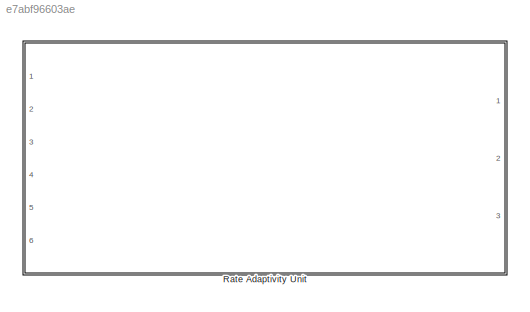
MODEL slx_e7abf96603ae
KIND model
CONFIG AbsTol = auto
CONFIG EnableMultiTasking = on
CONFIG FixedStep = 1e-3
CONFIG MaxStep = auto
CONFIG MinStep = auto
CONFIG RelTol = 1e-3
CONFIG SampleTimeConstraint = Unconstrained
CONFIG Solver = FixedStepAuto
CONFIG SolverName = FixedStepAuto
CONFIG StartTime = 0.0
CONFIG StopTime = 10.0
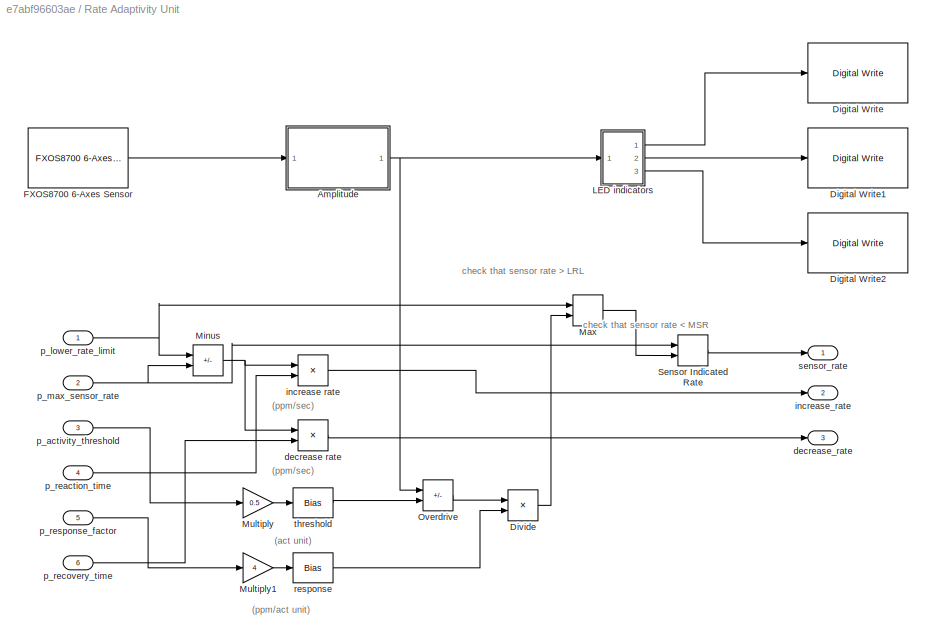
BLOCK [SubSystem] Rate Adaptivity Unit
  Ports = [6, 3]
  RequestExecContextInheritance = off
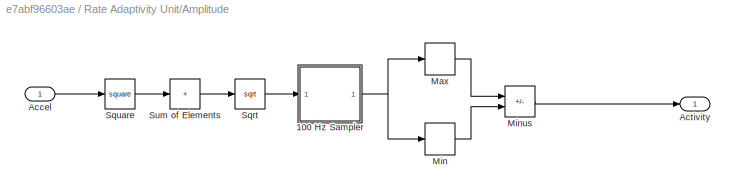
BLOCK [SubSystem] Rate Adaptivity Unit/Amplitude
  Ports = [1, 1]
  RequestExecContextInheritance = off
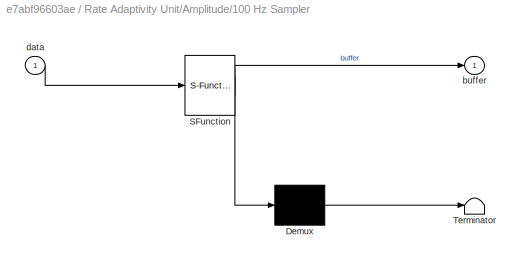
BLOCK [SubSystem] Rate Adaptivity Unit/Amplitude/100 Hz Sampler
  ErrorFcn = Stateflow.Translate.translate
  PermitHierarchicalResolution = ExplicitOnly
  Ports = [1, 1]
  RequestExecContextInheritance = off
  SFBlockType = Chart
  TreatAsAtomicUnit = on
BLOCK [Demux] Rate Adaptivity Unit/Amplitude/100 Hz Sampler/ Demux 
  Outputs = 1
  Ports = [1, 1]
BLOCK [S-Function] Rate Adaptivity Unit/Amplitude/100 Hz Sampler/ SFunction 
  EnableBusSupport = on
  FunctionName = sf_sfun
  PortCounts = [1 2]
  Ports = [1, 2]
  SFcnIsStateOwnerBlock = off
  SFunctionDeploymentMode = off
  Tag = Stateflow S-Function 3
BLOCK [Terminator] Rate Adaptivity Unit/Amplitude/100 Hz Sampler/ Terminator 
BLOCK [Outport] Rate Adaptivity Unit/Amplitude/100 Hz Sampler/buffer
BLOCK [Inport] Rate Adaptivity Unit/Amplitude/100 Hz Sampler/data
BLOCK [Inport] Rate Adaptivity Unit/Amplitude/Accel
BLOCK [Outport] Rate Adaptivity Unit/Amplitude/Activity
BLOCK [MinMax] Rate Adaptivity Unit/Amplitude/Max
  Function = max
  Ports = [1, 1]
BLOCK [MinMax] Rate Adaptivity Unit/Amplitude/Min
  Ports = [1, 1]
BLOCK [Sum] Rate Adaptivity Unit/Amplitude/Minus
  IconShape = rectangular
  Inputs = +-
  Ports = [2, 1]
BLOCK [Sqrt] Rate Adaptivity Unit/Amplitude/Sqrt
BLOCK [Math] Rate Adaptivity Unit/Amplitude/Square
  Operator = square
  Ports = [1, 1]
BLOCK [Sum] Rate Adaptivity Unit/Amplitude/Sum of Elements
  IconShape = rectangular
  Inputs = +
  Ports = [1, 1]
BLOCK [Reference] Rate Adaptivity Unit/Digital Write  REF=frdmk64flib/Digital Write
  Ports = [1]
  SourceBlock = frdmk64flib/Digital Write
  SourceProductBaseCode = EC_FRDM_K64F
  SourceType = freedomk64f.DigitalWrite
BLOCK [Reference] Rate Adaptivity Unit/Digital Write1  REF=frdmk64flib/Digital Write
  Ports = [1]
  SourceBlock = frdmk64flib/Digital Write
  SourceProductBaseCode = EC_FRDM_K64F
  SourceType = freedomk64f.DigitalWrite
BLOCK [Reference] Rate Adaptivity Unit/Digital Write2  REF=frdmk64flib/Digital Write
  Ports = [1]
  SourceBlock = frdmk64flib/Digital Write
  SourceProductBaseCode = EC_FRDM_K64F
  SourceType = freedomk64f.DigitalWrite
BLOCK [Product] Rate Adaptivity Unit/Divide
  Inputs = **
  Ports = [2, 1]
BLOCK [Reference] Rate Adaptivity Unit/FXOS8700 6-Axes Sensor  REF=frdmk64flib/FXOS8700 6-Axes Sensor
  Ports = [0, 1]
  SourceBlock = frdmk64flib/FXOS8700 6-Axes Sensor
  SourceProductBaseCode = EC_FRDM_K64F
  SourceType = freedomk64f.fxos8700
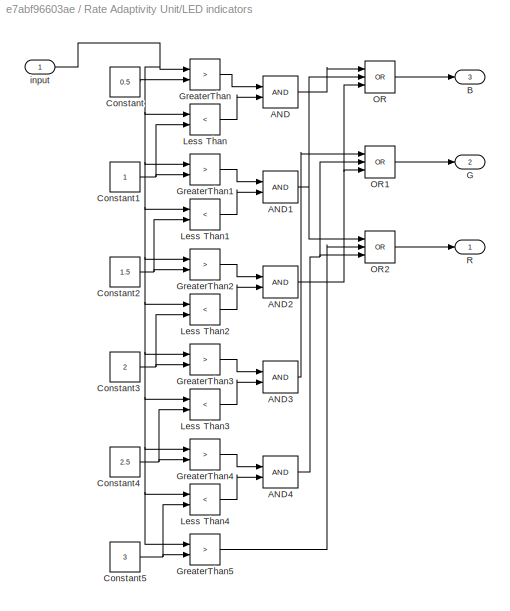
BLOCK [SubSystem] Rate Adaptivity Unit/LED indicators
  Ports = [1, 3]
  RequestExecContextInheritance = off
BLOCK [Logic] Rate Adaptivity Unit/LED indicators/AND
  AllPortsSameDT = off
  IconShape = distinctive
  OutDataTypeStr = boolean
  Ports = [2, 1]
BLOCK [Logic] Rate Adaptivity Unit/LED indicators/AND1
  AllPortsSameDT = off
  IconShape = distinctive
  OutDataTypeStr = boolean
  Ports = [2, 1]
BLOCK [Logic] Rate Adaptivity Unit/LED indicators/AND2
  AllPortsSameDT = off
  IconShape = distinctive
  OutDataTypeStr = boolean
  Ports = [2, 1]
BLOCK [Logic] Rate Adaptivity Unit/LED indicators/AND3
  AllPortsSameDT = off
  IconShape = distinctive
  OutDataTypeStr = boolean
  Ports = [2, 1]
BLOCK [Logic] Rate Adaptivity Unit/LED indicators/AND4
  AllPortsSameDT = off
  IconShape = distinctive
  OutDataTypeStr = boolean
  Ports = [2, 1]
BLOCK [Outport] Rate Adaptivity Unit/LED indicators/B
  Port = 3
BLOCK [Constant] Rate Adaptivity Unit/LED indicators/Constant
  Value = 0.5
BLOCK [Constant] Rate Adaptivity Unit/LED indicators/Constant1
BLOCK [Constant] Rate Adaptivity Unit/LED indicators/Constant2
  Value = 1.5
BLOCK [Constant] Rate Adaptivity Unit/LED indicators/Constant3
  Value = 2
BLOCK [Constant] Rate Adaptivity Unit/LED indicators/Constant4
  Value = 2.5
BLOCK [Constant] Rate Adaptivity Unit/LED indicators/Constant5
  Value = 3
BLOCK [Outport] Rate Adaptivity Unit/LED indicators/G
  Port = 2
BLOCK [RelationalOperator] Rate Adaptivity Unit/LED indicators/GreaterThan
  InputSameDT = off
  Operator = >
  OutDataTypeStr = boolean
  Ports = [2, 1]
  RndMeth = Simplest
BLOCK [RelationalOperator] Rate Adaptivity Unit/LED indicators/GreaterThan1
  InputSameDT = off
  Operator = >
  OutDataTypeStr = boolean
  Ports = [2, 1]
  RndMeth = Simplest
BLOCK [RelationalOperator] Rate Adaptivity Unit/LED indicators/GreaterThan2
  InputSameDT = off
  Operator = >
  OutDataTypeStr = boolean
  Ports = [2, 1]
  RndMeth = Simplest
BLOCK [RelationalOperator] Rate Adaptivity Unit/LED indicators/GreaterThan3
  InputSameDT = off
  Operator = >
  OutDataTypeStr = boolean
  Ports = [2, 1]
  RndMeth = Simplest
BLOCK [RelationalOperator] Rate Adaptivity Unit/LED indicators/GreaterThan4
  InputSameDT = off
  Operator = >
  OutDataTypeStr = boolean
  Ports = [2, 1]
  RndMeth = Simplest
BLOCK [RelationalOperator] Rate Adaptivity Unit/LED indicators/GreaterThan5
  InputSameDT = off
  Operator = >
  OutDataTypeStr = boolean
  Ports = [2, 1]
  RndMeth = Simplest
BLOCK [RelationalOperator] Rate Adaptivity Unit/LED indicators/Less Than
  InputSameDT = off
  Operator = <
  OutDataTypeStr = boolean
  Ports = [2, 1]
  RndMeth = Simplest
BLOCK [RelationalOperator] Rate Adaptivity Unit/LED indicators/Less Than1
  InputSameDT = off
  Operator = <
  OutDataTypeStr = boolean
  Ports = [2, 1]
  RndMeth = Simplest
BLOCK [RelationalOperator] Rate Adaptivity Unit/LED indicators/Less Than2
  InputSameDT = off
  Operator = <
  OutDataTypeStr = boolean
  Ports = [2, 1]
  RndMeth = Simplest
BLOCK [RelationalOperator] Rate Adaptivity Unit/LED indicators/Less Than3
  InputSameDT = off
  Operator = <
  OutDataTypeStr = boolean
  Ports = [2, 1]
  RndMeth = Simplest
BLOCK [RelationalOperator] Rate Adaptivity Unit/LED indicators/Less Than4
  InputSameDT = off
  Operator = <
  OutDataTypeStr = boolean
  Ports = [2, 1]
  RndMeth = Simplest
BLOCK [Logic] Rate Adaptivity Unit/LED indicators/OR
  AllPortsSameDT = off
  IconShape = distinctive
  Inputs = 3
  Operator = OR
  OutDataTypeStr = boolean
  Ports = [3, 1]
BLOCK [Logic] Rate Adaptivity Unit/LED indicators/OR1
  AllPortsSameDT = off
  IconShape = distinctive
  Inputs = 3
  Operator = OR
  OutDataTypeStr = boolean
  Ports = [3, 1]
BLOCK [Logic] Rate Adaptivity Unit/LED indicators/OR2
  AllPortsSameDT = off
  IconShape = distinctive
  Inputs = 3
  Operator = OR
  OutDataTypeStr = boolean
  Ports = [3, 1]
BLOCK [Outport] Rate Adaptivity Unit/LED indicators/R
BLOCK [Inport] Rate Adaptivity Unit/LED indicators/input
BLOCK [MinMax] Rate Adaptivity Unit/Max
  Function = max
  Inputs = 2
  Ports = [2, 1]
BLOCK [Sum] Rate Adaptivity Unit/Minus
  IconShape = rectangular
  Inputs = -+
  Ports = [2, 1]
BLOCK [Gain] Rate Adaptivity Unit/Multiply
  Gain = 0.5
BLOCK [Gain] Rate Adaptivity Unit/Multiply1
  Gain = 4
BLOCK [Sum] Rate Adaptivity Unit/Overdrive
  IconShape = rectangular
  Inputs = +-
  Ports = [2, 1]
BLOCK [MinMax] Rate Adaptivity Unit/Sensor Indicated Rate
  Inputs = 2
  Ports = [2, 1]
BLOCK [Product] Rate Adaptivity Unit/decrease rate
  Inputs = */
  Ports = [2, 1]
BLOCK [Outport] Rate Adaptivity Unit/decrease_rate
  Port = 3
BLOCK [Product] Rate Adaptivity Unit/increase rate
  Inputs = */
  Ports = [2, 1]
BLOCK [Outport] Rate Adaptivity Unit/increase_rate
  Port = 2
BLOCK [Inport] Rate Adaptivity Unit/p_activity_threshold
  Port = 3
BLOCK [Inport] Rate Adaptivity Unit/p_lower_rate_limit
BLOCK [Inport] Rate Adaptivity Unit/p_max_sensor_rate
  Port = 2
BLOCK [Inport] Rate Adaptivity Unit/p_reaction_time
  Port = 4
BLOCK [Inport] Rate Adaptivity Unit/p_recovery_time
  Port = 6
BLOCK [Inport] Rate Adaptivity Unit/p_response_factor
  Port = 5
BLOCK [Bias] Rate Adaptivity Unit/response
  SaturateOnIntegerOverflow = off
BLOCK [Outport] Rate Adaptivity Unit/sensor_rate
BLOCK [Bias] Rate Adaptivity Unit/threshold
  Bias = 0.5
  SaturateOnIntegerOverflow = off
ANNOTATION Rate Adaptivity Unit: (act unit)
ANNOTATION Rate Adaptivity Unit: (ppm/act unit)
ANNOTATION Rate Adaptivity Unit: (ppm/sec)
ANNOTATION Rate Adaptivity Unit: check that sensor rate < MSR
ANNOTATION Rate Adaptivity Unit: check that sensor rate > LRL
NET Rate Adaptivity Unit/Amplitude/100 Hz Sampler:1 -> Rate Adaptivity Unit/Amplitude/Max:1, Rate Adaptivity Unit/Amplitude/Min:1
LINE Rate Adaptivity Unit/Amplitude/Accel:1 -> Rate Adaptivity Unit/Amplitude/Square:1
LINE Rate Adaptivity Unit/Amplitude/Max:1 -> Rate Adaptivity Unit/Amplitude/Minus:1
LINE Rate Adaptivity Unit/Amplitude/Min:1 -> Rate Adaptivity Unit/Amplitude/Minus:2
LINE Rate Adaptivity Unit/Amplitude/Minus:1 -> Rate Adaptivity Unit/Amplitude/Activity:1
LINE Rate Adaptivity Unit/Amplitude/Sqrt:1 -> Rate Adaptivity Unit/Amplitude/100 Hz Sampler:1
LINE Rate Adaptivity Unit/Amplitude/Square:1 -> Rate Adaptivity Unit/Amplitude/Sum of Elements:1
LINE Rate Adaptivity Unit/Amplitude/Sum of Elements:1 -> Rate Adaptivity Unit/Amplitude/Sqrt:1
NET Rate Adaptivity Unit/Amplitude:1 -> Rate Adaptivity Unit/LED indicators:1, Rate Adaptivity Unit/Overdrive:1
LINE Rate Adaptivity Unit/Divide:1 -> Rate Adaptivity Unit/Max:2
LINE Rate Adaptivity Unit/FXOS8700 6-Axes Sensor:1 -> Rate Adaptivity Unit/Amplitude:1
NET Rate Adaptivity Unit/LED indicators/AND1:1 -> Rate Adaptivity Unit/LED indicators/OR2:1, Rate Adaptivity Unit/LED indicators/OR:2
NET Rate Adaptivity Unit/LED indicators/AND2:1 -> Rate Adaptivity Unit/LED indicators/OR1:3, Rate Adaptivity Unit/LED indicators/OR:3
LINE Rate Adaptivity Unit/LED indicators/AND3:1 -> Rate Adaptivity Unit/LED indicators/OR1:1
NET Rate Adaptivity Unit/LED indicators/AND4:1 -> Rate Adaptivity Unit/LED indicators/OR1:2, Rate Adaptivity Unit/LED indicators/OR2:3
LINE Rate Adaptivity Unit/LED indicators/AND:1 -> Rate Adaptivity Unit/LED indicators/OR:1
NET Rate Adaptivity Unit/LED indicators/Constant1:1 -> Rate Adaptivity Unit/LED indicators/GreaterThan1:2, Rate Adaptivity Unit/LED indicators/Less Than:2
NET Rate Adaptivity Unit/LED indicators/Constant2:1 -> Rate Adaptivity Unit/LED indicators/GreaterThan2:2, Rate Adaptivity Unit/LED indicators/Less Than1:2
NET Rate Adaptivity Unit/LED indicators/Constant3:1 -> Rate Adaptivity Unit/LED indicators/GreaterThan3:2, Rate Adaptivity Unit/LED indicators/Less Than2:2
NET Rate Adaptivity Unit/LED indicators/Constant4:1 -> Rate Adaptivity Unit/LED indicators/GreaterThan4:2, Rate Adaptivity Unit/LED indicators/Less Than3:2
NET Rate Adaptivity Unit/LED indicators/Constant5:1 -> Rate Adaptivity Unit/LED indicators/GreaterThan5:2, Rate Adaptivity Unit/LED indicators/Less Than4:2
LINE Rate Adaptivity Unit/LED indicators/Constant:1 -> Rate Adaptivity Unit/LED indicators/GreaterThan:2
LINE Rate Adaptivity Unit/LED indicators/GreaterThan1:1 -> Rate Adaptivity Unit/LED indicators/AND1:1
LINE Rate Adaptivity Unit/LED indicators/GreaterThan2:1 -> Rate Adaptivity Unit/LED indicators/AND2:1
LINE Rate Adaptivity Unit/LED indicators/GreaterThan3:1 -> Rate Adaptivity Unit/LED indicators/AND3:1
LINE Rate Adaptivity Unit/LED indicators/GreaterThan4:1 -> Rate Adaptivity Unit/LED indicators/AND4:1
LINE Rate Adaptivity Unit/LED indicators/GreaterThan5:1 -> Rate Adaptivity Unit/LED indicators/OR2:2
LINE Rate Adaptivity Unit/LED indicators/GreaterThan:1 -> Rate Adaptivity Unit/LED indicators/AND:1
LINE Rate Adaptivity Unit/LED indicators/Less Than1:1 -> Rate Adaptivity Unit/LED indicators/AND1:2
LINE Rate Adaptivity Unit/LED indicators/Less Than2:1 -> Rate Adaptivity Unit/LED indicators/AND2:2
LINE Rate Adaptivity Unit/LED indicators/Less Than3:1 -> Rate Adaptivity Unit/LED indicators/AND3:2
LINE Rate Adaptivity Unit/LED indicators/Less Than4:1 -> Rate Adaptivity Unit/LED indicators/AND4:2
LINE Rate Adaptivity Unit/LED indicators/Less Than:1 -> Rate Adaptivity Unit/LED indicators/AND:2
LINE Rate Adaptivity Unit/LED indicators/OR1:1 -> Rate Adaptivity Unit/LED indicators/G:1
LINE Rate Adaptivity Unit/LED indicators/OR2:1 -> Rate Adaptivity Unit/LED indicators/R:1
LINE Rate Adaptivity Unit/LED indicators/OR:1 -> Rate Adaptivity Unit/LED indicators/B:1
NET Rate Adaptivity Unit/LED indicators/input:1 -> Rate Adaptivity Unit/LED indicators/GreaterThan1:1, Rate Adaptivity Unit/LED indicators/GreaterThan2:1, Rate Adaptivity Unit/LED indicators/GreaterThan3:1, Rate Adaptivity Unit/LED indicators/GreaterThan4:1, Rate Adaptivity Unit/LED indicators/GreaterThan5:1, Rate Adaptivity Unit/LED indicators/GreaterThan:1, Rate Adaptivity Unit/LED indicators/Less Than1:1, Rate Adaptivity Unit/LED indicators/Less Than2:1, Rate Adaptivity Unit/LED indicators/Less Than3:1, Rate Adaptivity Unit/LED indicators/Less Than4:1, Rate Adaptivity Unit/LED indicators/Less Than:1
LINE Rate Adaptivity Unit/LED indicators:1 -> Rate Adaptivity Unit/Digital Write:1
LINE Rate Adaptivity Unit/LED indicators:2 -> Rate Adaptivity Unit/Digital Write1:1
LINE Rate Adaptivity Unit/LED indicators:3 -> Rate Adaptivity Unit/Digital Write2:1
LINE Rate Adaptivity Unit/Max:1 -> Rate Adaptivity Unit/Sensor Indicated Rate:2
NET Rate Adaptivity Unit/Minus:1 -> Rate Adaptivity Unit/decrease rate:1, Rate Adaptivity Unit/increase rate:1
LINE Rate Adaptivity Unit/Multiply1:1 -> Rate Adaptivity Unit/response:1
LINE Rate Adaptivity Unit/Multiply:1 -> Rate Adaptivity Unit/threshold:1
LINE Rate Adaptivity Unit/Overdrive:1 -> Rate Adaptivity Unit/Divide:1
LINE Rate Adaptivity Unit/Sensor Indicated Rate:1 -> Rate Adaptivity Unit/sensor_rate:1
LINE Rate Adaptivity Unit/decrease rate:1 -> Rate Adaptivity Unit/decrease_rate:1
LINE Rate Adaptivity Unit/increase rate:1 -> Rate Adaptivity Unit/increase_rate:1
LINE Rate Adaptivity Unit/p_activity_threshold:1 -> Rate Adaptivity Unit/Multiply:1
NET Rate Adaptivity Unit/p_lower_rate_limit:1 -> Rate Adaptivity Unit/Max:1, Rate Adaptivity Unit/Minus:1
NET Rate Adaptivity Unit/p_max_sensor_rate:1 -> Rate Adaptivity Unit/Minus:2, Rate Adaptivity Unit/Sensor Indicated Rate:1
LINE Rate Adaptivity Unit/p_reaction_time:1 -> Rate Adaptivity Unit/increase rate:2
LINE Rate Adaptivity Unit/p_recovery_time:1 -> Rate Adaptivity Unit/decrease rate:2
LINE Rate Adaptivity Unit/p_response_factor:1 -> Rate Adaptivity Unit/Multiply1:1
LINE Rate Adaptivity Unit/response:1 -> Rate Adaptivity Unit/Divide:2
LINE Rate Adaptivity Unit/threshold:1 -> Rate Adaptivity Unit/Overdrive:2
note: NET lines group one-source signal fan-out (src -> all destinations, sorted); 1:1 wires keep LINE
CHART Rate Adaptivity Unit/Amplitude/100 Hz Sampler states=1 transitions=2
  STATE_LABEL 'SAMPLE\nentry:\nbuffer(2:50) = buffer(1:49);\nbuffer(1) = data;'
CHART  states=0 transitions=0
